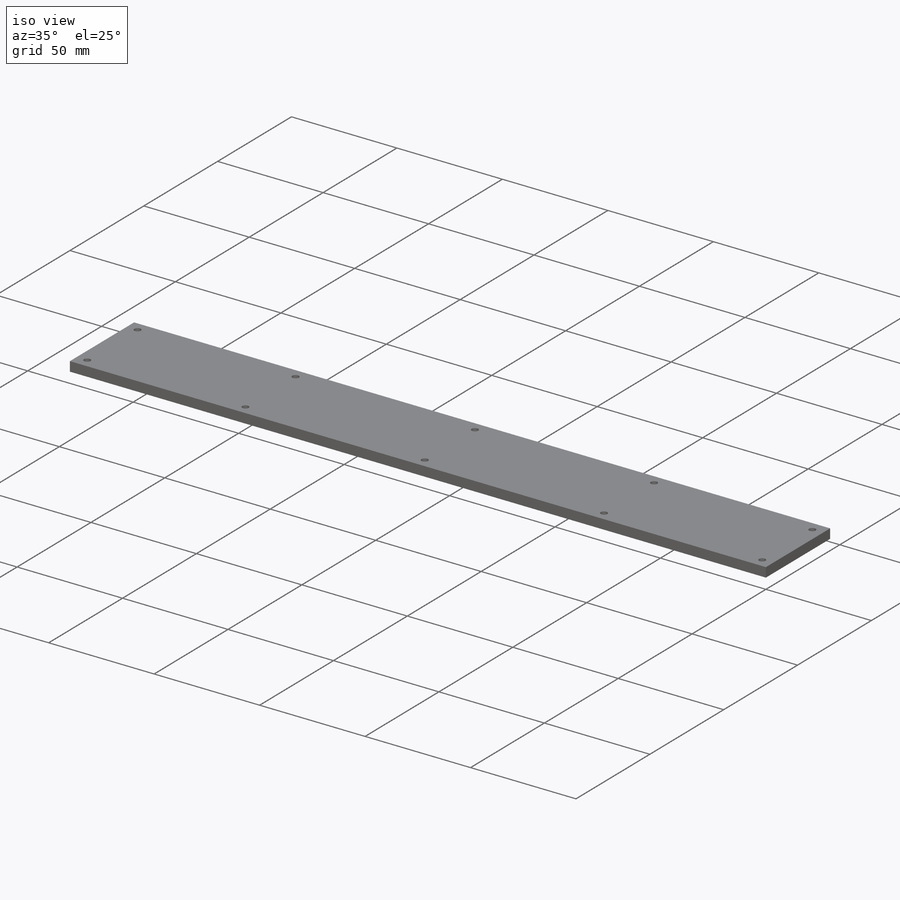
[diagram: iso view]
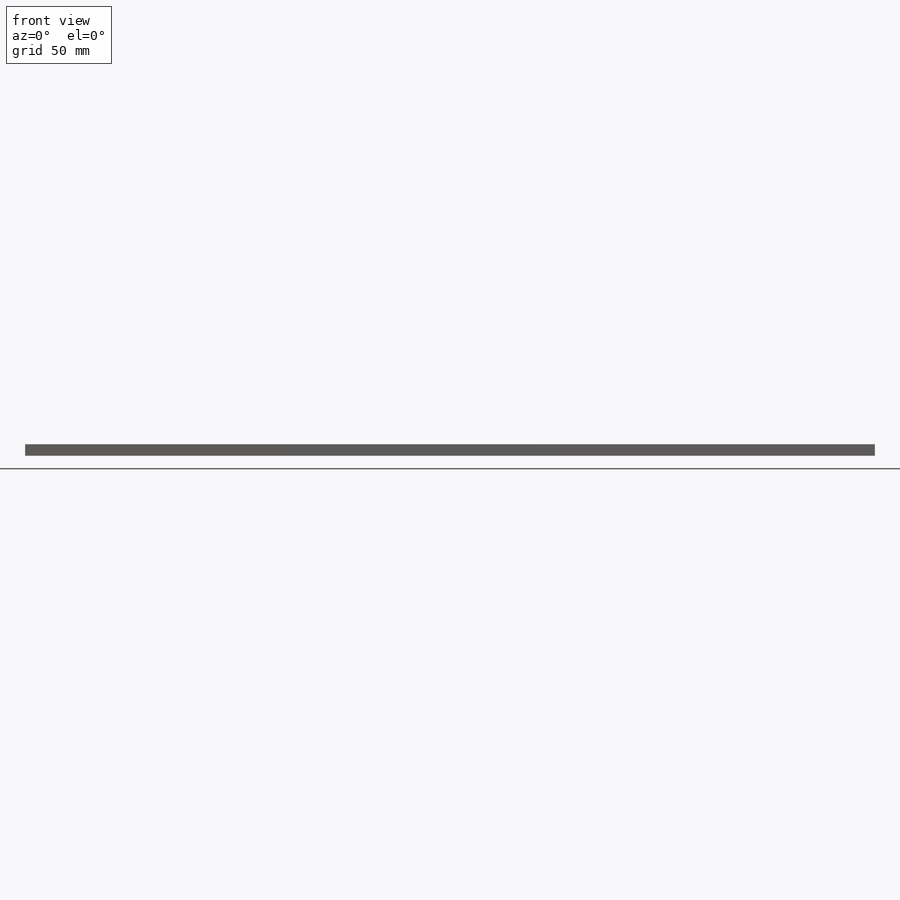
[diagram: front view]
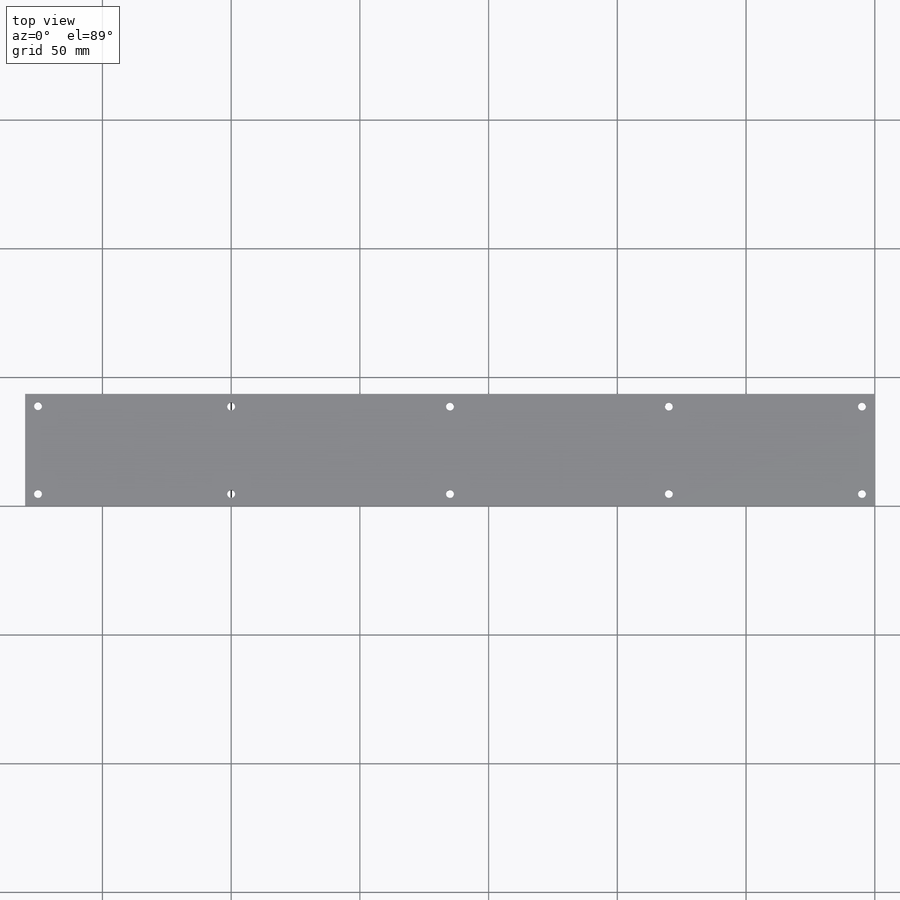
[diagram: top view]
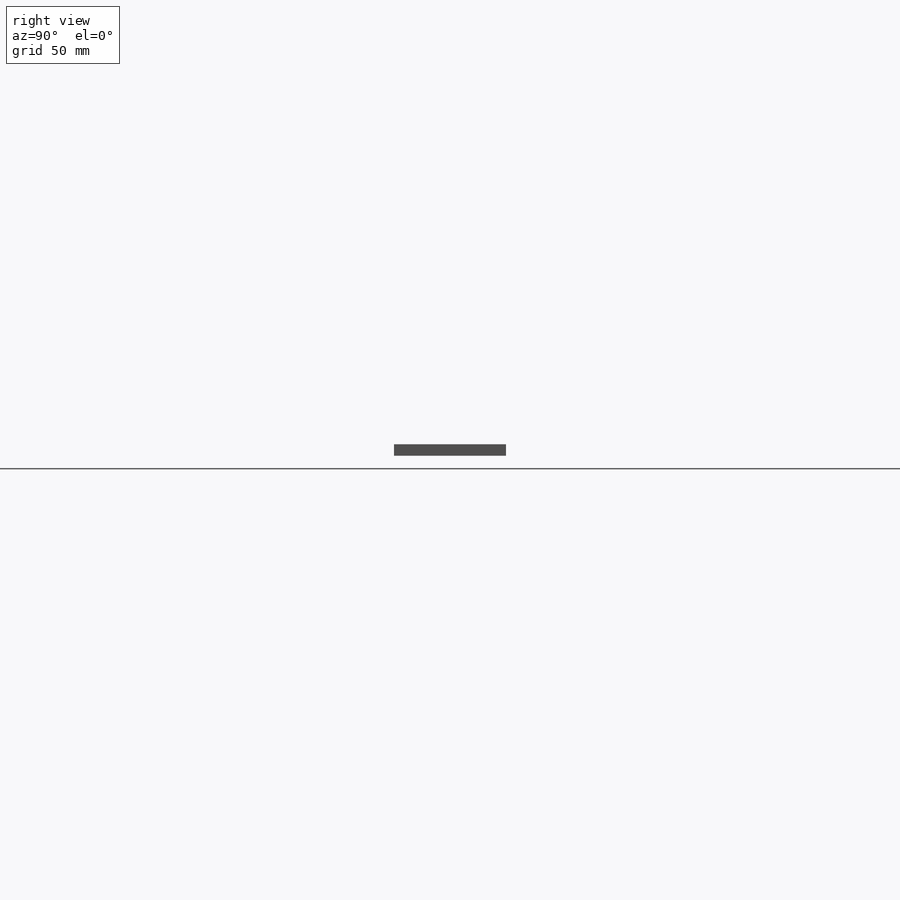
[diagram: right view]
SOLIDWORKS PART (.sldprt)
format: sldprt  version: not decoded by parser v0  size: 159,744 bytes
history: native  units: mm
features: sketch x3, material x1, extrude x1, hole x1 (+11 scaffold rows collapsed)
feature tree (17):
  scaffold x11  (default folders/planes/origin — collapsed)
  material  "Material <not specified>"
  sketch  "Sketch1"  dims[D1=330.0mm D2=43.5mm]
  extrude  "Boss-Extrude1"  Depth=4.5mm
  hole  "#31 (0.12) Diameter Hole3"  Diameter=3.048mm Depth=4.5mm
  sketch  "Sketch7"  dims[c1.D1=5.0mm c1.D2=5.0mm c1.D3=80.0mm c1.D4=80.0mm c1.D5=165.0mm c1.D6=165.0mm c1.D7=250.0mm c1.D8=325.0mm c1.D9=250.0mm c1.D10=325.0mm c2.D1=38.75mm]
  sketch  "Sketch6"  dims[hole-wizard template sketch: 60 standard entries collapsed; hole parameters kept: c18.Thru Hole Depth=4.5mm]
decode coverage: 5 of 5 modeling features carry decoded parameters
note: ~ marks probable driven/reference dimensions
note: suppression state not decoded; provenance and decode notes live in map.json
